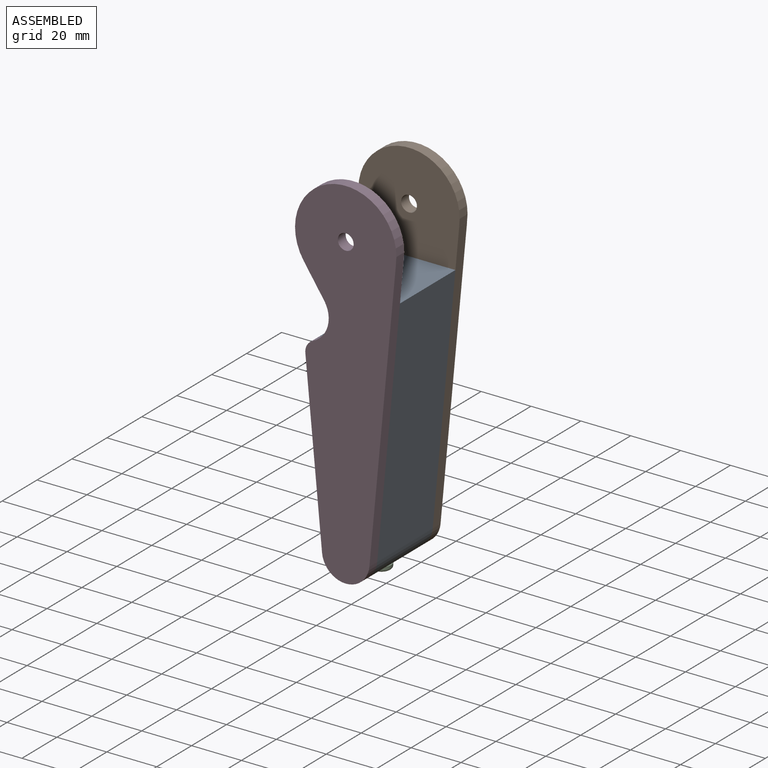
[diagram: assembled view]
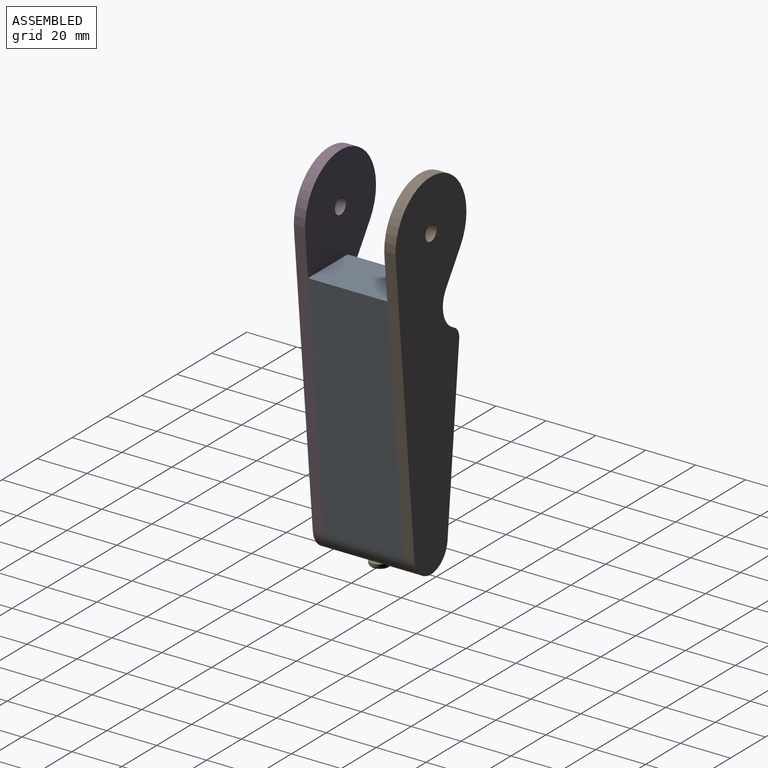
[diagram: assembled view, second angle]
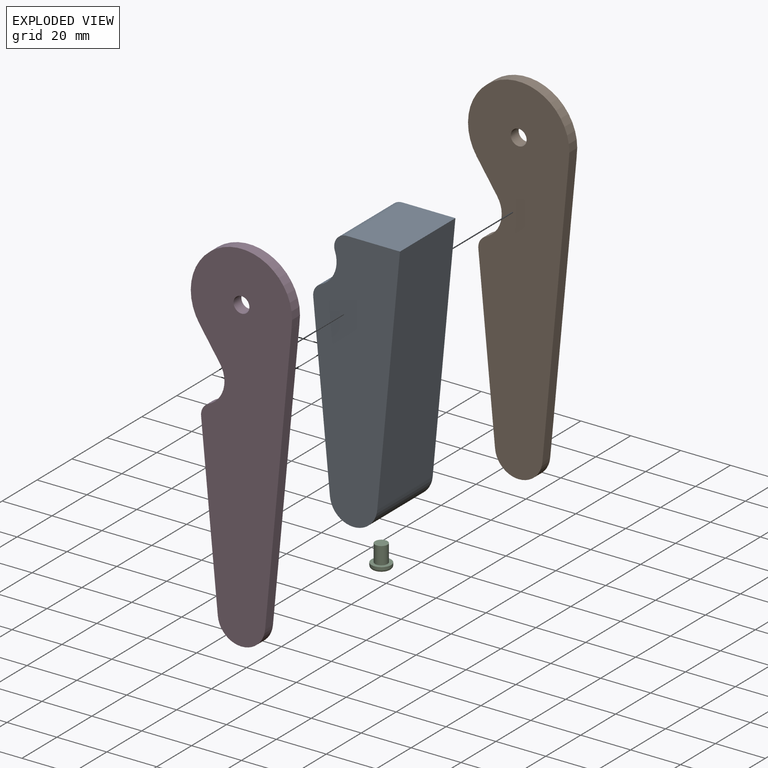
[diagram: exploded view]
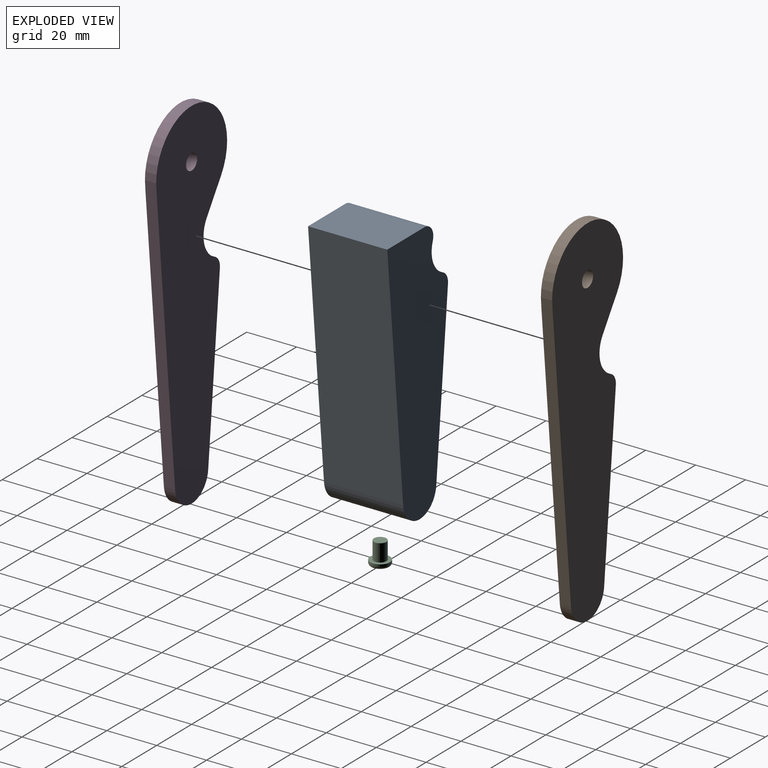
[diagram: exploded view, second angle]
ASSEMBLY  parts=4 mates=3
PART A: 11 faces, bbox 79.3x64.1x94 mm
  f0: plane 94.04x63.45mm, normal (-0.5,0.87,0), area 2619.5mm2, adj f1,f2,f3,f4,f8,f9,f10
  f1: plane 36.72x31.85mm, normal (0.43,0.25,0.87), area 676.2mm2, adj f0,f2,f5,f9
  f2: plane 78.71x64.35mm, normal (0.71,0.41,-0.58), area 3066.5mm2, adj f0,f1,f3,f5
  f3: cylinder r=9.53mm len=36.14mm, axis (0.5,-0.87,0), area 873.1mm2, adj f0,f2,f4,f5,f6
  f4: plane 64.54x42.26mm, normal (-0.79,-0.45,0.42), area 2253.3mm2, adj f0,f3,f5,f10
  f5: plane 94.04x63.45mm, normal (0.5,-0.87,0), area 2619.5mm2, adj f1,f2,f3,f4,f8,f9,f10
  f6: cylinder r=2.5mm len=8.55mm, axis (0.43,0.25,0.87), area 107.1mm2, adj f3,f7
  f7: plane 4.84x4.51mm, normal (-0.43,-0.25,-0.87), area 19.6mm2, adj f6
  f8: cylinder r=10.79mm len=33.37mm, axis (-0.5,0.87,0), area 514.3mm2, adj f0,f5,f9,f10
  f9: cylinder r=5.08mm len=31.27mm, axis (-0.5,0.87,0), area 309.8mm2, adj f0,f1,f5,f8
  f10: cylinder r=5.08mm len=30.07mm, axis (-0.5,0.87,0), area 200.8mm2, adj f0,f4,f5,f8
PART B: 11 faces, bbox 77.6x47.4x128.8 mm
  f0: plane 64.54x27.82mm, normal (-0.79,-0.45,0.42), area 319.4mm2, adj f3,f6,f7,f10
  f1: plane 3.92x2.29mm, normal (0,0,1), area 0.2mm2, adj f2,f4,f6,f7
  f2: cylinder r=20.32mm len=37.45mm, axis (-0.5,0.87,0), area 355.3mm2, adj f1,f6,f7,f8
  f3: cylinder r=9.53mm len=17.22mm, axis (-0.5,0.87,0), area 126.5mm2, adj f0,f4,f6,f7
  f4: plane 91.81x58.79mm, normal (0.71,0.41,-0.58), area 507mm2, adj f1,f3,f6,f7
  f5: cylinder r=3.17mm len=7.75mm, axis (-0.5,0.87,0), area 89.8mm2, adj f6,f7
  f6: plane 128.83x75.34mm, normal (0.5,-0.87,0), area 3952.8mm2, adj f0,f1,f2,f3,f4,f5,f8,f9
  f7: plane 128.83x75.34mm, normal (-0.5,0.87,0), area 3952.8mm2, adj f0,f1,f2,f3,f4,f5,f8,f9
  f8: plane 14.68x4.4mm, normal (-0.86,-0.5,-0.07), area 66.2mm2, adj f2,f6,f7,f9
  f9: cylinder r=10.79mm len=12.56mm, axis (-0.5,0.87,0), area 84.7mm2, adj f6,f7,f8,f10
  f10: cylinder r=5.08mm len=6.7mm, axis (-0.5,0.87,0), area 28.5mm2, adj f0,f6,f7,f9
PART C: 6 faces, bbox 9.5x8.3x10.7 mm
  f0: plane 5.49x5.11mm, normal (-0.43,-0.25,-0.87), area 25.2mm2, adj f5
  f1: cylinder r=3.94mm len=7.86mm, axis (0.43,0.25,0.87), area 23mm2, adj f2,f5
  f2: plane 7.62x7.1mm, normal (0.43,0.25,0.87), area 29.1mm2, adj f1,f3
  f3: cylinder r=2.5mm len=8.55mm, axis (0.43,0.25,0.87), area 109.7mm2, adj f2,f4
  f4: plane 4.84x4.51mm, normal (0.43,0.25,0.87), area 19.6mm2, adj f3
  f5: torus R=2.83mm, axis (-0.43,-0.25,-0.87), area 38.5mm2, adj f0,f1
PART D: same geometry as B
PLACE A rot(axis=(0.19,-0.69,-0.69),42.2deg) t=(28.2,0,54.59)mm
PLACE B rot(axis=(0.19,-0.69,-0.69),42.2deg) t=(28.2,36.25,54.59)mm
PLACE C rot(axis=(0.19,-0.69,-0.69),42.2deg) t=(28.2,0,54.59)mm
PLACE D rot(axis=(0.19,-0.69,-0.69),42.2deg) t=(28.2,0,54.59)mm
MATE fastened C.f1 <-> A.f6  axis (0,0,1) through (-7.96,0,-97.79)mm
MATE fastened A.f3 <-> B.f3  axis (0,1,0) through (-7.96,15.88,-95.25)mm
MATE fastened A.f3 <-> D.f3  axis (0,-1,0) through (-7.96,-15.87,-95.25)mm
